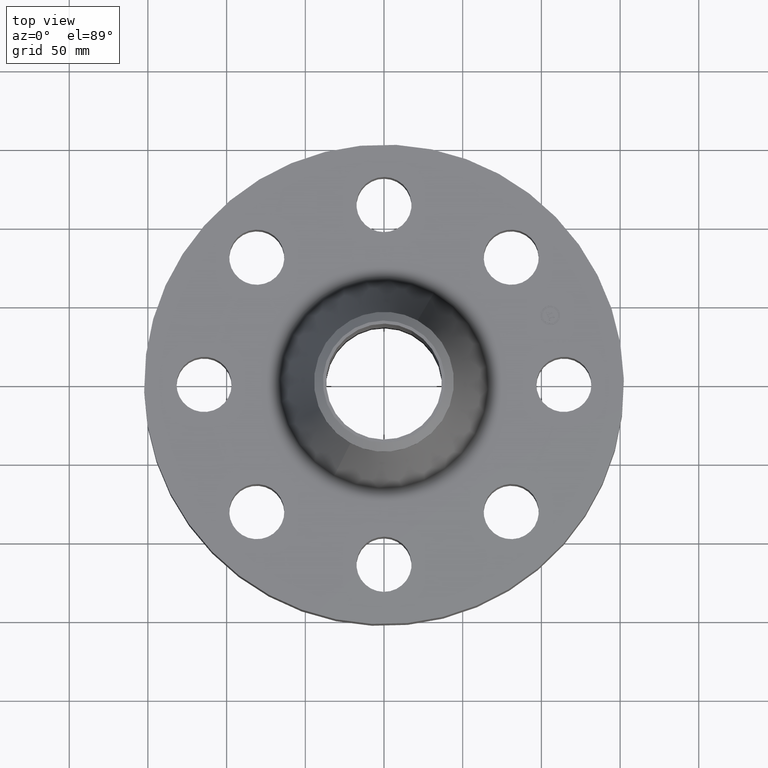
[diagram: clean part render]
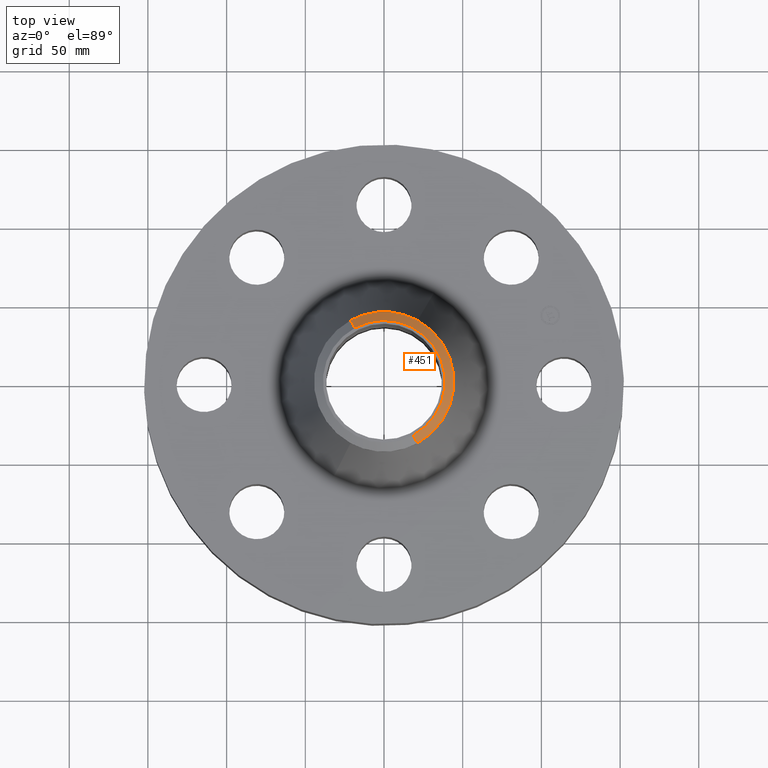
[diagram: same view with one face highlighted and labeled with its STEP entity id]
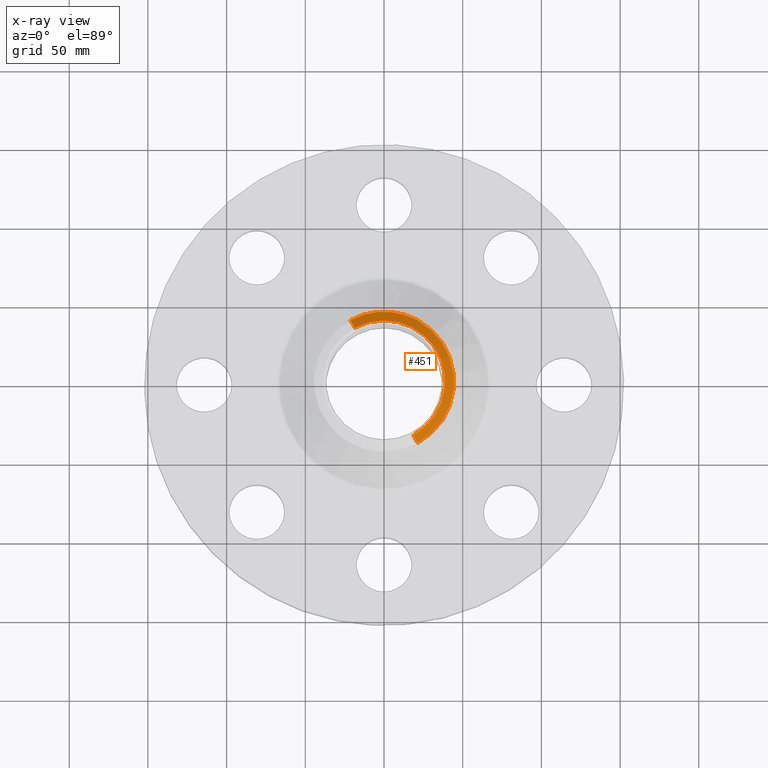
[diagram: x-ray of the same camera — body ghosted, the highlighted face saturated]
A machine part, top view. The second image highlights one B-rep face of the part: STEP entity #451.
The next image is the same camera in x-ray: the body ghosted, the highlighted face saturated — about 0% of this face is hidden behind the body in this view.
In plain terms, the highlighted conical surface has half-angle 52.5 deg.
Its self-contained STEP definition (entity closure, byte-faithful):
#270=AXIS2_PLACEMENT_3D('Circle Axis2P3D',#268,#269,$) ;
#297=AXIS2_PLACEMENT_3D('Circle Axis2P3D',#295,#296,$) ;
#311=AXIS2_PLACEMENT_3D('Cone Axis2P3D',#308,#309,#310) ;
#432=AXIS2_PLACEMENT_3D('Circle Axis2P3D',#430,#431,$) ;
#265=CARTESIAN_POINT('Vertex',(0.838994692561,1.53576948331,6.4502213515)) ;
#268=CARTESIAN_POINT('Axis2P3D Location',(0.,0.,6.4502213515)) ;
#272=CARTESIAN_POINT('Vertex',(0.838994692561,-1.53576948331,6.4502213515)) ;
#292=CARTESIAN_POINT('Vertex',(-0.838994692561,1.53576948331,6.4502213515)) ;
#295=CARTESIAN_POINT('Axis2P3D Location',(0.,0.,6.4502213515)) ;
#308=CARTESIAN_POINT('Axis2P3D Location',(0.,0.,6.62000000003)) ;
#313=CARTESIAN_POINT('Line Origine',(0.785955882975,-1.43868259359,6.53511067577)) ;
#317=CARTESIAN_POINT('Vertex',(0.732917073389,-1.34159570387,6.62000000003)) ;
#324=CARTESIAN_POINT('Vertex',(-0.732917073389,1.34159570387,6.62000000003)) ;
#327=CARTESIAN_POINT('Line Origine',(-0.785955882975,1.43868259359,6.53511067577)) ;
#430=CARTESIAN_POINT('Axis2P3D Location',(0.,0.,6.62000000003)) ;
#269=DIRECTION('Axis2P3D Direction',(0.,0.,-0.0393700787402)) ;
#296=DIRECTION('Axis2P3D Direction',(0.,0.,-0.0393700787402)) ;
#309=DIRECTION('Axis2P3D Direction',(-0.,-0.,-0.0393700787402)) ;
#310=DIRECTION('Axis2P3D XDirection',(-0.0188750212049,0.0345504945626,0.)) ;
#314=DIRECTION('Vector Direction',(0.014974561121,-0.02741075027,-0.023966985394)) ;
#328=DIRECTION('Vector Direction',(-0.014974561121,0.02741075027,-0.023966985394)) ;
#431=DIRECTION('Axis2P3D Direction',(0.,0.,-0.0393700787402)) ;
#315=VECTOR('Line Direction',#314,0.0393700787402) ;
#329=VECTOR('Line Direction',#328,0.0393700787402) ;
#445=ORIENTED_EDGE('',*,*,#331,.F.) ;
#446=ORIENTED_EDGE('',*,*,#434,.F.) ;
#447=ORIENTED_EDGE('',*,*,#319,.T.) ;
#448=ORIENTED_EDGE('',*,*,#274,.T.) ;
#449=ORIENTED_EDGE('',*,*,#299,.F.) ;
#451=ADVANCED_FACE('PartBody',(#450),#312,.T.) ;
#271=CIRCLE('generated circle',#270,1.75000000001) ;
#298=CIRCLE('generated circle',#297,1.75000000001) ;
#433=CIRCLE('generated circle',#432,1.52874015749) ;
#312=CONICAL_SURFACE('Cone',#311,1.52874015749,0.916297857297) ;
#274=EDGE_CURVE('',#273,#266,#271,.F.) ;
#299=EDGE_CURVE('',#293,#266,#298,.T.) ;
#319=EDGE_CURVE('',#318,#273,#316,.T.) ;
#331=EDGE_CURVE('',#325,#293,#330,.T.) ;
#434=EDGE_CURVE('',#318,#325,#433,.F.) ;
#444=EDGE_LOOP('',(#445,#446,#447,#448,#449)) ;
#450=FACE_OUTER_BOUND('',#444,.T.) ;
#316=LINE('Line',#313,#315) ;
#330=LINE('Line',#327,#329) ;
#266=VERTEX_POINT('',#265) ;
#273=VERTEX_POINT('',#272) ;
#293=VERTEX_POINT('',#292) ;
#318=VERTEX_POINT('',#317) ;
#325=VERTEX_POINT('',#324) ;